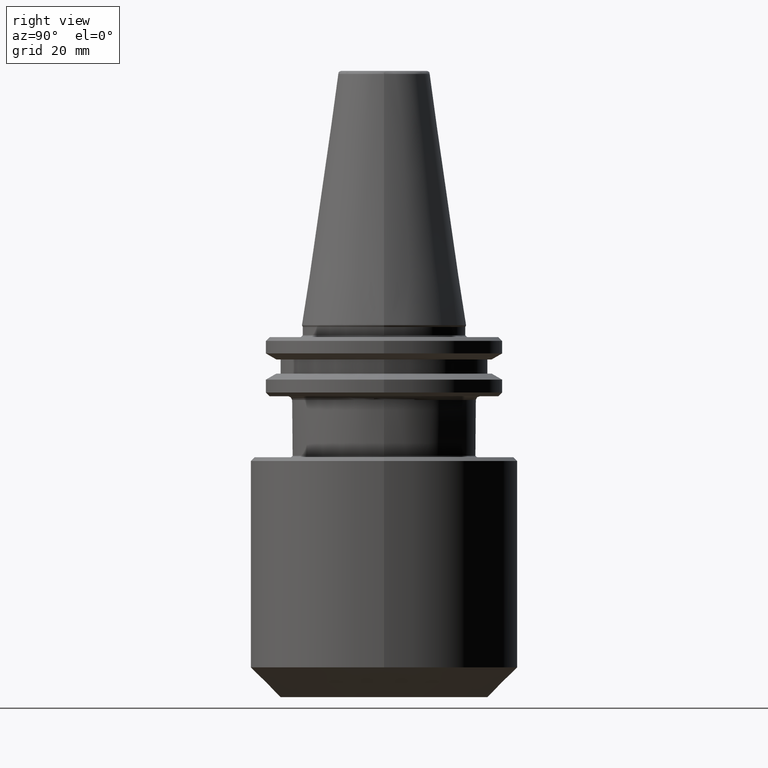
[diagram: clean part render]
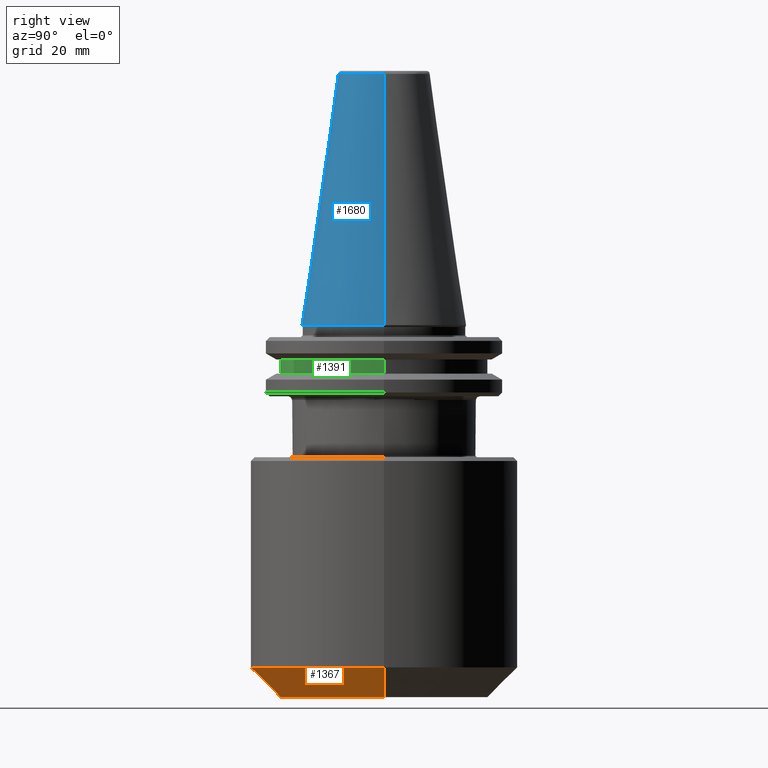
[diagram: same view with three faces highlighted in distinct colors, each labeled with its STEP entity id]
A machine part, right view with three faces highlighted in distinct colors.
Their STEP definitions:

[orange] entity #1367 — the highlighted conical surface has half-angle 45 deg.
#29 = DIRECTION ( 'NONE',  ( -0.7071067811865456900, 8.659560562354910700E-017, 0.7071067811865493500 ) ) ;
#32 = CARTESIAN_POINT ( 'NONE',  ( -36.00000000000000700, 4.408728476930471600E-015, -91.99999999999997200 ) ) ;
#64 = CARTESIAN_POINT ( 'NONE',  ( 36.00000000000000700, 0.0000000000000000000, -91.99999999999997200 ) ) ;
#131 = VECTOR ( 'NONE', #470, 1000.000000000000000 ) ;
#191 = LINE ( 'NONE', #471, #131 ) ;
#253 = EDGE_LOOP ( 'NONE', ( #1701, #1672, #1613, #445 ) ) ;
#417 = DIRECTION ( 'NONE',  ( 1.000000000000000000, 0.0000000000000000000, 0.0000000000000000000 ) ) ;
#418 = CARTESIAN_POINT ( 'NONE',  ( 0.0000000000000000000, 0.0000000000000000000, -91.99999999999997200 ) ) ;
#432 = DIRECTION ( 'NONE',  ( 0.0000000000000000000, -0.0000000000000000000, 1.000000000000000000 ) ) ;
#445 = ORIENTED_EDGE ( 'NONE', *, *, #1708, .F. ) ;
#470 = DIRECTION ( 'NONE',  ( 0.7071067811865456900, 0.0000000000000000000, 0.7071067811865493500 ) ) ;
#471 = CARTESIAN_POINT ( 'NONE',  ( 36.00000000000000700, 0.0000000000000000000, -91.99999999999997200 ) ) ;
#474 = EDGE_CURVE ( 'NONE', #994, #765, #515, .T. ) ;
#515 = CIRCLE ( 'NONE', #615, 28.00000000000001100 ) ;
#547 = CARTESIAN_POINT ( 'NONE',  ( -36.00000000000000700, 4.408728476930471600E-015, -91.99999999999997200 ) ) ;
#579 = CIRCLE ( 'NONE', #1830, 35.99999999999999300 ) ;
#615 = AXIS2_PLACEMENT_3D ( 'NONE', #1482, #1608, #1605 ) ;
#765 = VERTEX_POINT ( 'NONE', #1013 ) ;
#864 = DIRECTION ( 'NONE',  ( 0.0000000000000000000, 0.0000000000000000000, 1.000000000000000000 ) ) ;
#888 = CARTESIAN_POINT ( 'NONE',  ( -28.00000000000001100, 3.918869757271531100E-015, -100.0000000000000000 ) ) ;
#994 = VERTEX_POINT ( 'NONE', #888 ) ;
#1001 = DIRECTION ( 'NONE',  ( 1.000000000000000000, 0.0000000000000000000, 0.0000000000000000000 ) ) ;
#1013 = CARTESIAN_POINT ( 'NONE',  ( 28.00000000000001100, 0.0000000000000000000, -100.0000000000000000 ) ) ;
#1033 = AXIS2_PLACEMENT_3D ( 'NONE', #418, #432, #417 ) ;
#1077 = LINE ( 'NONE', #32, #1170 ) ;
#1120 = VERTEX_POINT ( 'NONE', #547 ) ;
#1170 = VECTOR ( 'NONE', #29, 1000.000000000000000 ) ;
#1268 = EDGE_CURVE ( 'NONE', #765, #1470, #191, .T. ) ;
#1350 = CONICAL_SURFACE ( 'NONE', #1033, 36.00000000000000700, 0.7853981633974457300 ) ;
#1365 = CARTESIAN_POINT ( 'NONE',  ( 0.0000000000000000000, 0.0000000000000000000, -91.99999999999997200 ) ) ;
#1367 = ADVANCED_FACE ( 'NONE', ( #1464 ), #1350, .T. ) ;
#1464 = FACE_OUTER_BOUND ( 'NONE', #253, .T. ) ;
#1470 = VERTEX_POINT ( 'NONE', #64 ) ;
#1482 = CARTESIAN_POINT ( 'NONE',  ( 0.0000000000000000000, 0.0000000000000000000, -100.0000000000000000 ) ) ;
#1505 = EDGE_CURVE ( 'NONE', #994, #1120, #1077, .T. ) ;
#1605 = DIRECTION ( 'NONE',  ( 1.000000000000000000, 0.0000000000000000000, 0.0000000000000000000 ) ) ;
#1608 = DIRECTION ( 'NONE',  ( 0.0000000000000000000, -0.0000000000000000000, 1.000000000000000000 ) ) ;
#1613 = ORIENTED_EDGE ( 'NONE', *, *, #1268, .T. ) ;
#1672 = ORIENTED_EDGE ( 'NONE', *, *, #474, .T. ) ;
#1701 = ORIENTED_EDGE ( 'NONE', *, *, #1505, .F. ) ;
#1708 = EDGE_CURVE ( 'NONE', #1120, #1470, #579, .T. ) ;
#1830 = AXIS2_PLACEMENT_3D ( 'NONE', #1365, #864, #1001 ) ;

[blue] entity #1680 — the highlighted conical surface has half-angle 8.297 deg.
#43 = DIRECTION ( 'NONE',  ( 1.000000000000000000, 0.0000000000000000000, 9.822541477422708000E-017 ) ) ;
#45 = DIRECTION ( 'NONE',  ( -0.0000000000000000000, -0.0000000000000000000, -1.000000000000000000 ) ) ;
#46 = CARTESIAN_POINT ( 'NONE',  ( 0.0000000000000000000, 0.0000000000000000000, 0.0000000000000000000 ) ) ;
#202 = ORIENTED_EDGE ( 'NONE', *, *, #1627, .T. ) ;
#229 = VERTEX_POINT ( 'NONE', #1612 ) ;
#290 = DIRECTION ( 'NONE',  ( -1.000000000000000000, 0.0000000000000000000, 0.0000000000000000000 ) ) ;
#329 = CONICAL_SURFACE ( 'NONE', #1979, 22.22500000000000100, 0.1448138465474190500 ) ;
#393 = FACE_OUTER_BOUND ( 'NONE', #467, .T. ) ;
#467 = EDGE_LOOP ( 'NONE', ( #494, #202, #1879, #1455 ) ) ;
#489 = CIRCLE ( 'NONE', #1787, 12.37469537611110800 ) ;
#494 = ORIENTED_EDGE ( 'NONE', *, *, #1749, .F. ) ;
#497 = DIRECTION ( 'NONE',  ( 0.1443082272673070500, 1.767266086135363700E-017, -0.9895327864921743500 ) ) ;
#578 = DIRECTION ( 'NONE',  ( -0.1443082272673070500, 0.0000000000000000000, -0.9895327864921743500 ) ) ;
#659 = CARTESIAN_POINT ( 'NONE',  ( 12.37469537611110800, 2.118620309691397300E-015, 67.54430822726729400 ) ) ;
#700 = VERTEX_POINT ( 'NONE', #1101 ) ;
#865 = CARTESIAN_POINT ( 'NONE',  ( 22.22500000000000100, 2.721777511104992800E-015, 0.0000000000000000000 ) ) ;
#868 = CARTESIAN_POINT ( 'NONE',  ( -22.22500000000000100, 0.0000000000000000000, 0.0000000000000000000 ) ) ;
#890 = LINE ( 'NONE', #868, #1097 ) ;
#1019 = VERTEX_POINT ( 'NONE', #865 ) ;
#1058 = EDGE_CURVE ( 'NONE', #700, #229, #890, .T. ) ;
#1097 = VECTOR ( 'NONE', #578, 1000.000000000000000 ) ;
#1101 = CARTESIAN_POINT ( 'NONE',  ( -12.37469537611110800, 0.0000000000000000000, 67.54430822726729400 ) ) ;
#1226 = CARTESIAN_POINT ( 'NONE',  ( 0.0000000000000000000, 0.0000000000000000000, 0.0000000000000000000 ) ) ;
#1455 = ORIENTED_EDGE ( 'NONE', *, *, #1478, .F. ) ;
#1477 = CARTESIAN_POINT ( 'NONE',  ( 0.0000000000000000000, 0.0000000000000000000, 67.54430822726729400 ) ) ;
#1478 = EDGE_CURVE ( 'NONE', #1019, #229, #1801, .T. ) ;
#1480 = CARTESIAN_POINT ( 'NONE',  ( 22.22500000000000100, 2.721777511104992800E-015, 0.0000000000000000000 ) ) ;
#1507 = VECTOR ( 'NONE', #497, 1000.000000000000000 ) ;
#1511 = AXIS2_PLACEMENT_3D ( 'NONE', #46, #45, #43 ) ;
#1562 = DIRECTION ( 'NONE',  ( -1.000000000000000000, 0.0000000000000000000, 0.0000000000000000000 ) ) ;
#1612 = CARTESIAN_POINT ( 'NONE',  ( -22.22500000000000100, 0.0000000000000000000, 0.0000000000000000000 ) ) ;
#1627 = EDGE_CURVE ( 'NONE', #1658, #700, #489, .T. ) ;
#1658 = VERTEX_POINT ( 'NONE', #659 ) ;
#1680 = ADVANCED_FACE ( 'NONE', ( #393 ), #329, .T. ) ;
#1718 = LINE ( 'NONE', #1480, #1507 ) ;
#1749 = EDGE_CURVE ( 'NONE', #1658, #1019, #1718, .T. ) ;
#1787 = AXIS2_PLACEMENT_3D ( 'NONE', #1477, #1948, #290 ) ;
#1801 = CIRCLE ( 'NONE', #1511, 22.22500000000000500 ) ;
#1853 = DIRECTION ( 'NONE',  ( 0.0000000000000000000, 0.0000000000000000000, -1.000000000000000000 ) ) ;
#1879 = ORIENTED_EDGE ( 'NONE', *, *, #1058, .T. ) ;
#1948 = DIRECTION ( 'NONE',  ( 0.0000000000000000000, 0.0000000000000000000, -1.000000000000000000 ) ) ;
#1979 = AXIS2_PLACEMENT_3D ( 'NONE', #1226, #1853, #1562 ) ;

[green] entity #1391 — the highlighted cylindrical surface (partial cylindrical patch) has radius 28 mm, axis along (0, 0, 1).
#7 = LINE ( 'NONE', #12, #999 ) ;
#11 = DIRECTION ( 'NONE',  ( 0.0000000000000000000, 0.0000000000000000000, 1.000000000000000000 ) ) ;
#12 = CARTESIAN_POINT ( 'NONE',  ( -28.00000000000000000, 3.429011037612589300E-015, 113.5216080541959500 ) ) ;
#16 = DIRECTION ( 'NONE',  ( 1.000000000000000000, 0.0000000000000000000, 0.0000000000000000000 ) ) ;
#17 = DIRECTION ( 'NONE',  ( -0.0000000000000000000, -0.0000000000000000000, -1.000000000000000000 ) ) ;
#19 = CARTESIAN_POINT ( 'NONE',  ( 0.0000000000000000000, 0.0000000000000000000, -9.199999999999999300 ) ) ;
#54 = VECTOR ( 'NONE', #1017, 1000.000000000000000 ) ;
#55 = CARTESIAN_POINT ( 'NONE',  ( 28.00000000000000000, 0.0000000000000000000, -9.199999999999999300 ) ) ;
#123 = VERTEX_POINT ( 'NONE', #1643 ) ;
#161 = DIRECTION ( 'NONE',  ( 0.0000000000000000000, 0.0000000000000000000, 1.000000000000000000 ) ) ;
#394 = DIRECTION ( 'NONE',  ( 1.000000000000000000, 0.0000000000000000000, 0.0000000000000000000 ) ) ;
#395 = DIRECTION ( 'NONE',  ( 1.000000000000000000, 0.0000000000000000000, 0.0000000000000000000 ) ) ;
#399 = DIRECTION ( 'NONE',  ( 0.0000000000000000000, 0.0000000000000000000, 1.000000000000000000 ) ) ;
#400 = CARTESIAN_POINT ( 'NONE',  ( 0.0000000000000000000, 0.0000000000000000000, -13.00000000000001100 ) ) ;
#402 = CARTESIAN_POINT ( 'NONE',  ( 0.0000000000000000000, 0.0000000000000000000, 113.5216080541959500 ) ) ;
#573 = CARTESIAN_POINT ( 'NONE',  ( -28.00000000000000000, 3.429011037612589300E-015, -9.199999999999999300 ) ) ;
#703 = AXIS2_PLACEMENT_3D ( 'NONE', #400, #399, #395 ) ;
#755 = CIRCLE ( 'NONE', #703, 28.00000000000000000 ) ;
#863 = FACE_OUTER_BOUND ( 'NONE', #1335, .T. ) ;
#869 = VERTEX_POINT ( 'NONE', #996 ) ;
#924 = CARTESIAN_POINT ( 'NONE',  ( 28.00000000000000000, 0.0000000000000000000, 113.5216080541959500 ) ) ;
#936 = ORIENTED_EDGE ( 'NONE', *, *, #1541, .F. ) ;
#996 = CARTESIAN_POINT ( 'NONE',  ( 28.00000000000000000, 0.0000000000000000000, -13.00000000000001100 ) ) ;
#999 = VECTOR ( 'NONE', #11, 1000.000000000000000 ) ;
#1017 = DIRECTION ( 'NONE',  ( 0.0000000000000000000, 0.0000000000000000000, 1.000000000000000000 ) ) ;
#1151 = LINE ( 'NONE', #924, #54 ) ;
#1335 = EDGE_LOOP ( 'NONE', ( #936, #1593, #1757, #1732 ) ) ;
#1378 = EDGE_CURVE ( 'NONE', #123, #869, #755, .T. ) ;
#1391 = ADVANCED_FACE ( 'NONE', ( #863 ), #1710, .T. ) ;
#1481 = AXIS2_PLACEMENT_3D ( 'NONE', #402, #161, #394 ) ;
#1493 = VERTEX_POINT ( 'NONE', #55 ) ;
#1516 = EDGE_CURVE ( 'NONE', #1493, #1711, #1818, .T. ) ;
#1541 = EDGE_CURVE ( 'NONE', #123, #1711, #7, .T. ) ;
#1559 = AXIS2_PLACEMENT_3D ( 'NONE', #19, #17, #16 ) ;
#1593 = ORIENTED_EDGE ( 'NONE', *, *, #1378, .T. ) ;
#1643 = CARTESIAN_POINT ( 'NONE',  ( -28.00000000000000000, 3.429011037612589300E-015, -13.00000000000001100 ) ) ;
#1710 = CYLINDRICAL_SURFACE ( 'NONE', #1481, 28.00000000000000000 ) ;
#1711 = VERTEX_POINT ( 'NONE', #573 ) ;
#1732 = ORIENTED_EDGE ( 'NONE', *, *, #1516, .T. ) ;
#1757 = ORIENTED_EDGE ( 'NONE', *, *, #1802, .T. ) ;
#1802 = EDGE_CURVE ( 'NONE', #869, #1493, #1151, .T. ) ;
#1818 = CIRCLE ( 'NONE', #1559, 28.00000000000000000 ) ;